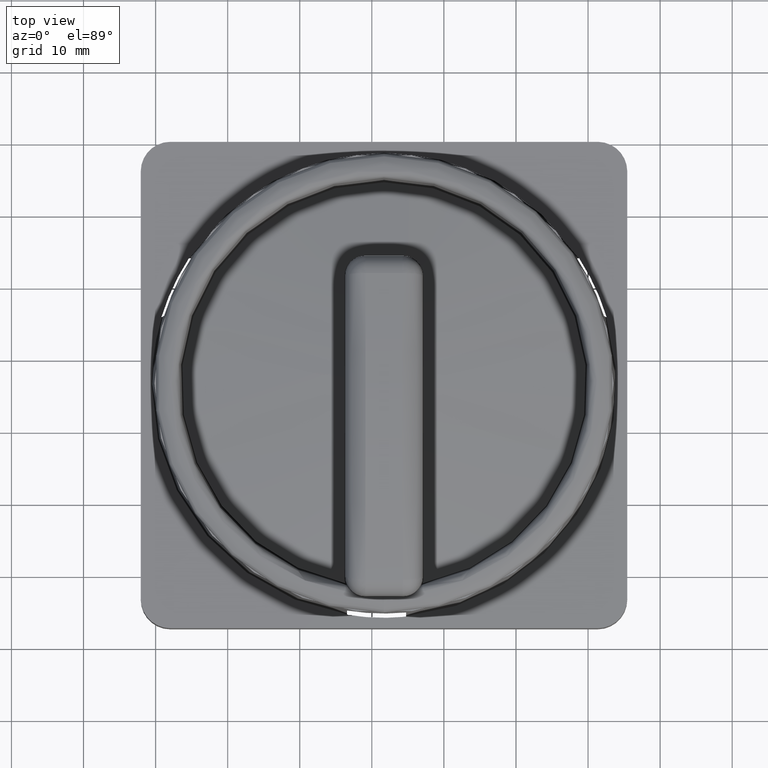
[diagram: clean part render]
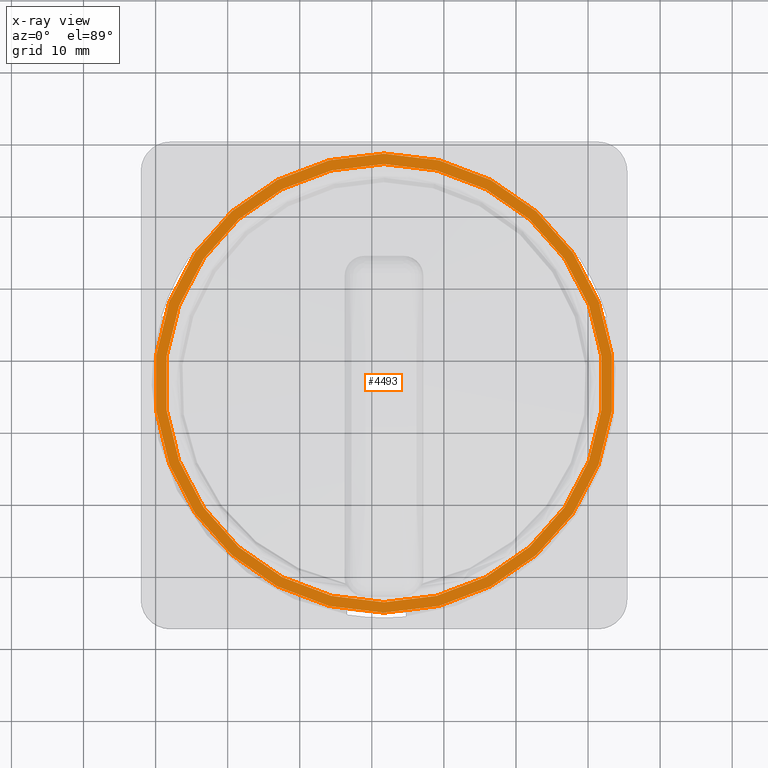
[diagram: x-ray — body ghosted, one internal face saturated and labeled with its STEP entity id]
A machine part, top view, then the same camera in x-ray: the body is ghosted and one INTERNAL B-rep face — a face not visible from any outside direction — is saturated and labeled: STEP entity #4493.
In plain terms, the highlighted planar face has unit normal (0, 0, -1).
Its self-contained STEP definition (entity closure, byte-faithful):
#3343=CARTESIAN_POINT('',(111.68807423814602,146.91377568703999,73.299999999999699));
#3344=VERTEX_POINT('',#3343);
#3345=CARTESIAN_POINT('',(111.68807423814602,116.51422582001801,73.299999999999699));
#3346=DIRECTION('',(0.0,0.0,1.0));
#3347=DIRECTION('',(0.0,1.0,0.0));
#3348=AXIS2_PLACEMENT_3D('',#3345,#3346,#3347);
#3349=CIRCLE('',#3348,30.399549867021602);
#3350=EDGE_CURVE('',#3344,#3344,#3349,.T.);
#4467=CARTESIAN_POINT('',(111.68807423814602,84.664225820018103,73.299999999999699));
#4468=VERTEX_POINT('',#4467);
#4469=CARTESIAN_POINT('',(111.68807423814602,116.51422582001801,73.299999999999699));
#4470=DIRECTION('',(0.0,0.0,1.0));
#4471=DIRECTION('',(0.0,-1.0,0.0));
#4472=AXIS2_PLACEMENT_3D('',#4469,#4470,#4471);
#4473=CIRCLE('',#4472,31.850000000000005);
#4474=EDGE_CURVE('',#4468,#4468,#4473,.T.);
#4482=CARTESIAN_POINT('',(111.68807423814602,84.664225820018103,73.299999999999699));
#4483=DIRECTION('',(0.0,0.0,-1.0));
#4484=DIRECTION('',(-1.0,0.0,0.0));
#4485=AXIS2_PLACEMENT_3D('',#4482,#4483,#4484);
#4486=PLANE('',#4485);
#4487=ORIENTED_EDGE('',*,*,#4474,.F.);
#4488=EDGE_LOOP('',(#4487));
#4489=FACE_OUTER_BOUND('',#4488,.T.);
#4490=ORIENTED_EDGE('',*,*,#3350,.T.);
#4491=EDGE_LOOP('',(#4490));
#4492=FACE_BOUND('',#4491,.T.);
#4493=ADVANCED_FACE('',(#4489,#4492),#4486,.T.);